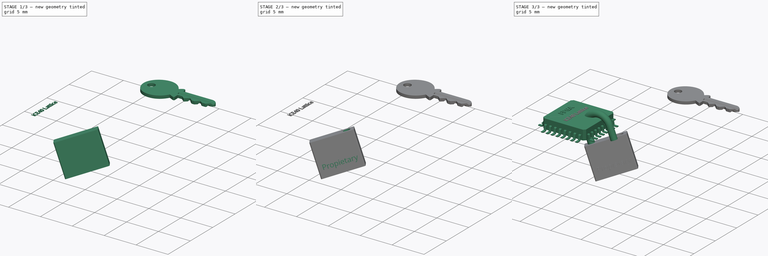
[diagram: build sequence overview — one tinted view per stage of 3, left to right]
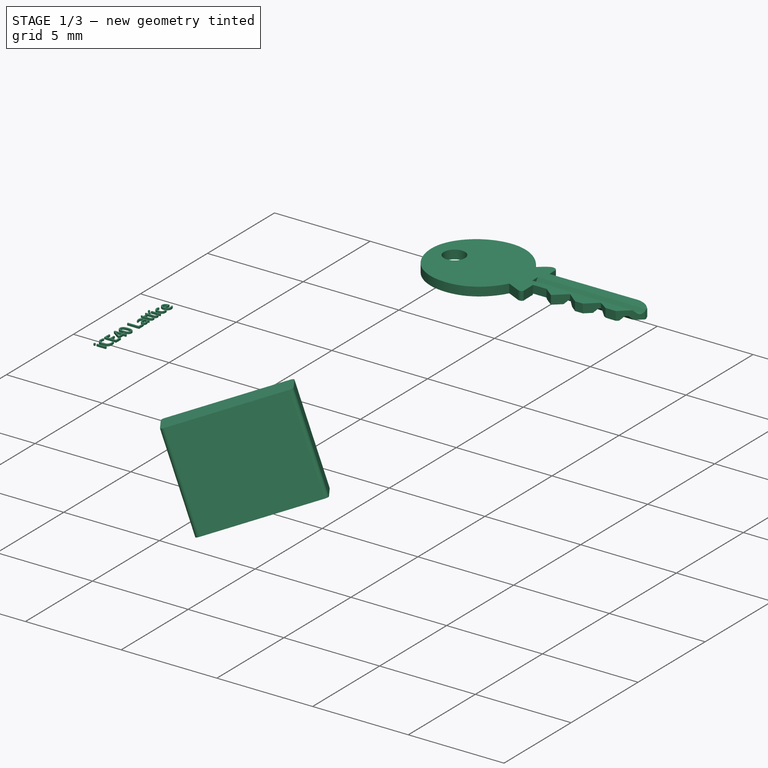
[diagram: stage 1 of 3 — iso view after this stage's code; geometry added in this stage tinted green]
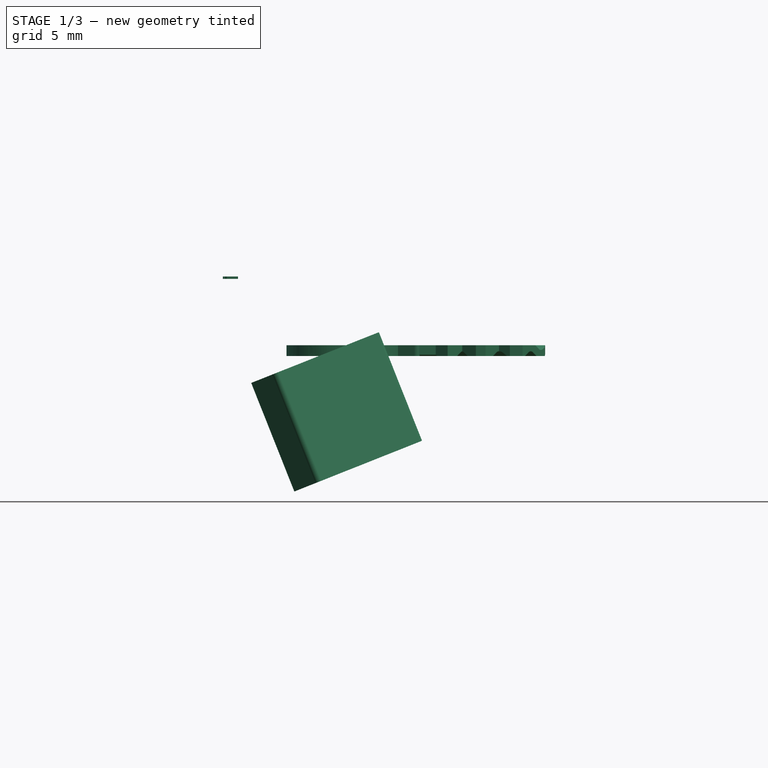
[diagram: stage 1 of 3 — front view after this stage's code; geometry added in this stage tinted green]
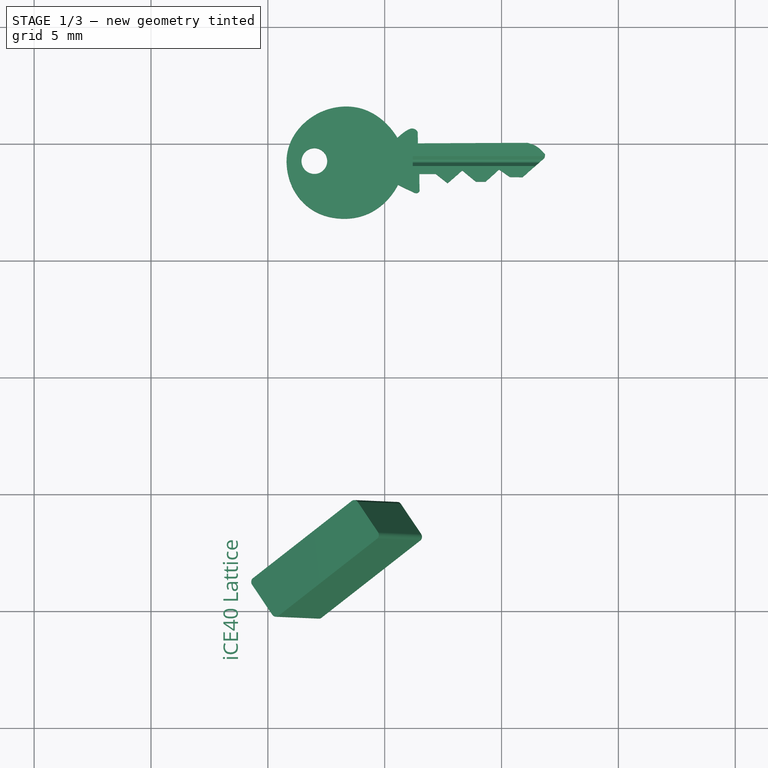
[diagram: stage 1 of 3 — top view after this stage's code; geometry added in this stage tinted green]
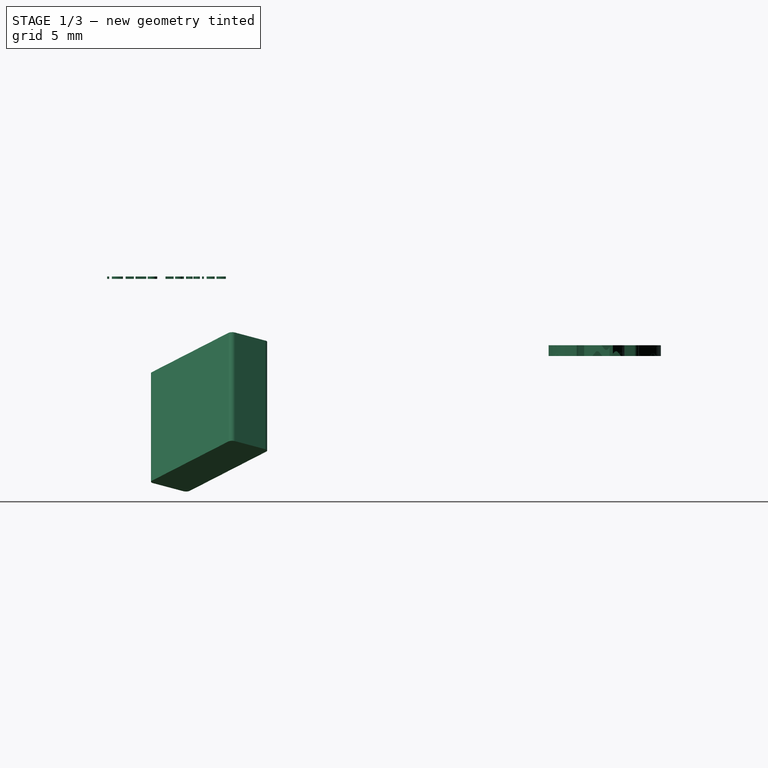
[diagram: stage 1 of 3 — right view after this stage's code; geometry added in this stage tinted green]
FCSTD DOCUMENT  (FreeCAD 0.17R12412 (Git))
Label: fpga-icestorm-1
License: CC-BY 3.0
LicenseURL: http://creativecommons.org/licenses/by/3.0/
objects: Part::Part2DObjectPython×6, Part::Extrusion×4, Sketcher::SketchObject×3, Part::Compound×1, Part::Sweep×1, PartDesign::Pocket×1, Part::Feature×1, Part::FeaturePython×1
note: 19 computed .brp shape members not serialized (recipe doc carries the construction recipe); baked Part::Feature solids carry a one-line shape summary decoded from their .brp

FEATURE [Part::Part2DObjectPython] Rectangle  # Draft 2D object (typed FeaturePython)
  ChamferSize = 0
  Columns = 1
  FilletRadius = 0.2
  Height = -2
  Length = 6
  MakeFace = true
  Placement = pos=(-3,1,0) rot=(0,0,1;0rad)
  Rows = 1
FEATURE [Part::Extrusion] Extrude  label="lock-body"
  Base = -> Rectangle
  Dir = (0,0,-5)
  DirMode = 0
  FaceMakerClass = Part::FaceMakerExtrusion
  LengthFwd = 0
  LengthRev = 0
  Placement = pos=(2.019,-2.83143,-0.0685019) rot=(-0.162414,-0.503555,0.84856;0.726462rad)
  Solid = true
  Symmetric = false
FEATURE [Part::Part2DObjectPython] ShapeString004  # Draft 2D object (typed FeaturePython)
  FontFile = <userpath>/develop/fpgawars.github.io/images/src/Open_Sans/OpenSans-Regular.ttf
  Placement = pos=(-2.17348,-6.63742,3.3) rot=(0,0,1;0rad)
  Size = 0.8
  String = iCE40 Lattice
  Tracking = 0
FEATURE [Part::Extrusion] Extrude003
  Base = -> ShapeString004
  Dir = (0,0,0.1)
  DirMode = 0
  FaceMakerClass = Part::FaceMakerExtrusion
  LengthFwd = 0
  LengthRev = 0
  Placement = pos=(-7.91715,-5.08998,0) rot=(0,0,1;1.5708rad)
  Solid = true
  Symmetric = false
FEATURE [Part::Feature] Cut  label="key-model-1"
  Placement = pos=(17.7074,-0.977876,0) rot=(0,0,1;1.57204rad)
  shape: bbox 24.14 x 55.34 x 2.3 mm, 44 faces (baked)
FEATURE [Part::FeaturePython] Clone  label="Clone of key-model-1"  # Draft clone (typed FeaturePython)
  Objects = -> [Cut]
  Scale = (0.2,0.2,0.2)
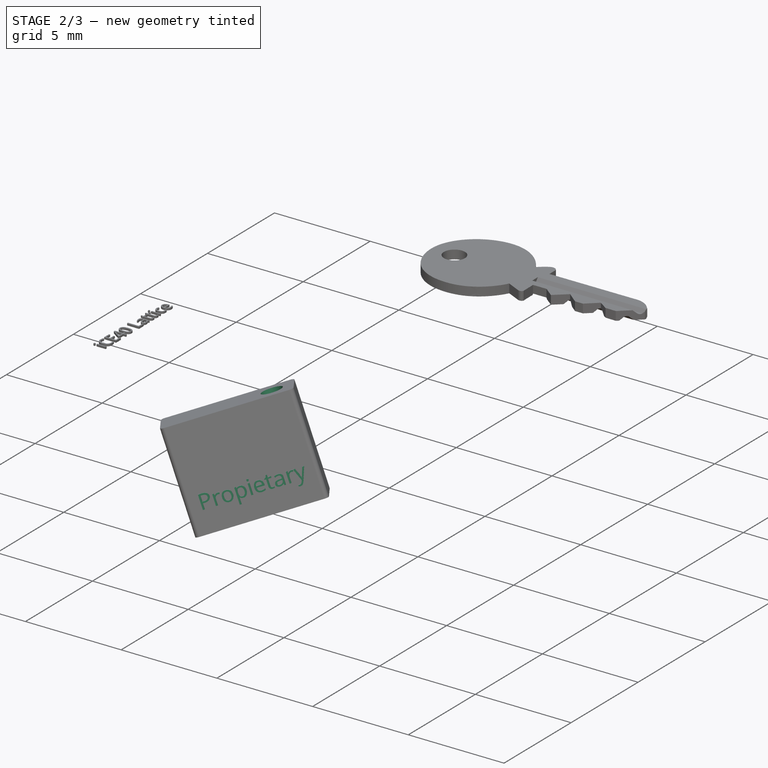
[diagram: stage 2 of 3 — iso view after this stage's code; geometry added in this stage tinted green]
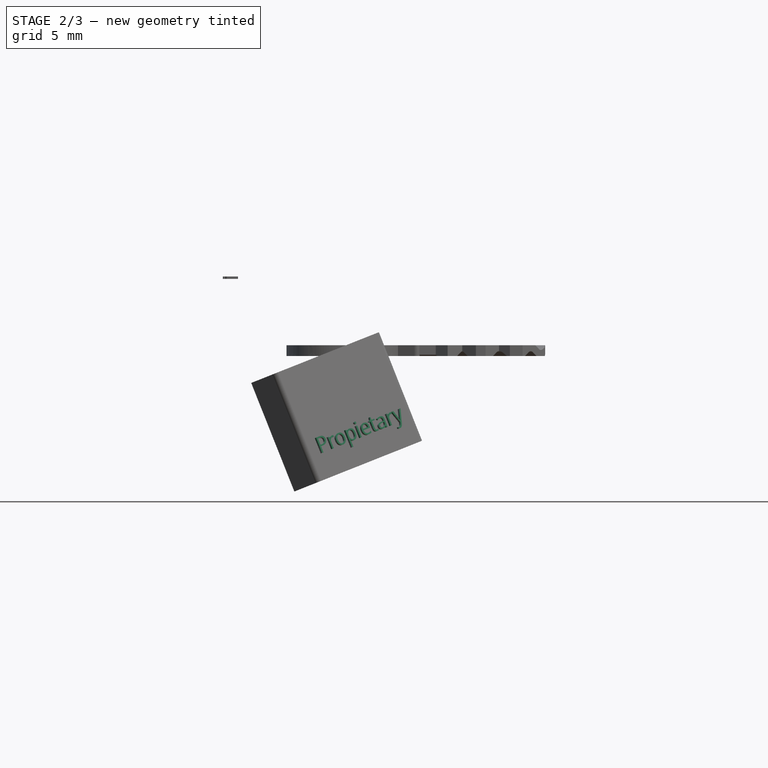
[diagram: stage 2 of 3 — front view after this stage's code; geometry added in this stage tinted green]
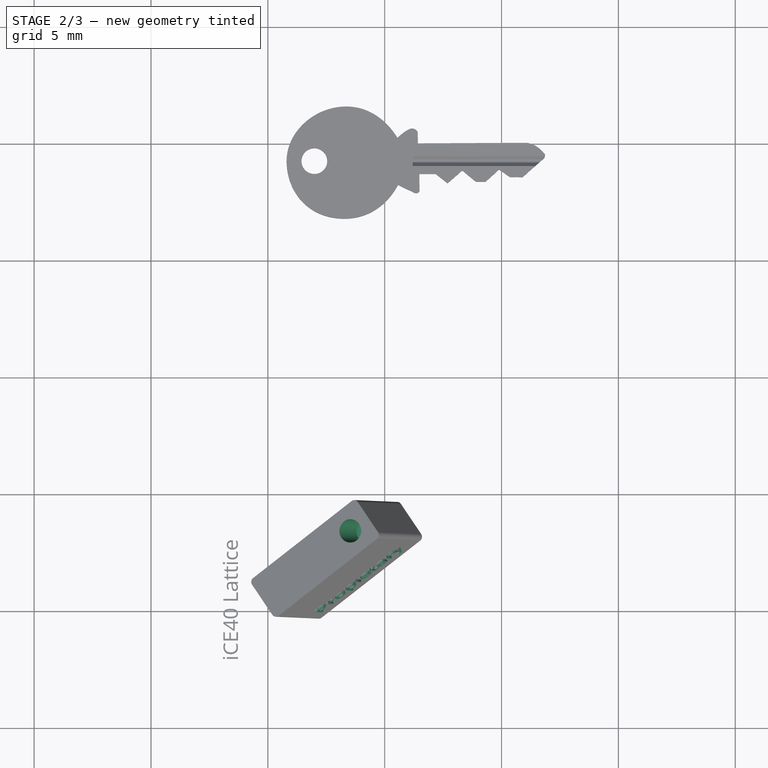
[diagram: stage 2 of 3 — top view after this stage's code; geometry added in this stage tinted green]
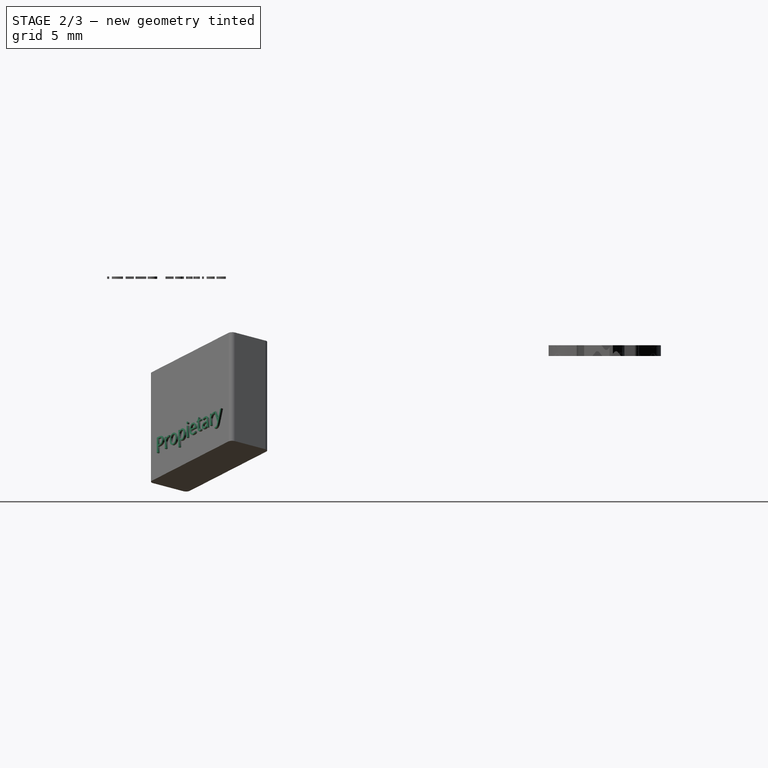
[diagram: stage 2 of 3 — right view after this stage's code; geometry added in this stage tinted green]
FEATURE [Part::Part2DObjectPython] ShapeString001  # Draft 2D object (typed FeaturePython)
  FontFile = <userpath>/develop/myslides/2016-09-24-Mini-maker-faire-madrid/images/src/Open_Sans/OpenSans-Regular.ttf
  Placement = pos=(1.83581,-5,-4.30397) rot=(0.965264,-0.184751,0.184751;1.60614rad)
  Size = 0.9
  String = Propietary
  Tracking = 0
FEATURE [Part::Extrusion] Extrude002  label="privative-text"
  Base = -> ShapeString001
  Dir = (0,-0.1,0)
  DirMode = 0
  FaceMakerClass = Part::FaceMakerExtrusion
  LengthFwd = 0
  LengthRev = 0
  Placement = pos=(-2.33895,-1.05701,-0.966052) rot=(-0.369271,0,0.929322;0.624001rad)
  Solid = true
  Symmetric = false
FEATURE [Sketcher::SketchObject] Sketch
  MapMode = 5
  Placement = pos=(2.019,-2.83143,-0.0685019) rot=(-0.162414,-0.503555,0.84856;0.726462rad)
  Support = -> [Extrude]
FEATURE [Sketcher::SketchObject] Sketch001
  MapMode = 5
  Placement = pos=(2.019,-2.83143,-0.0685019) rot=(-0.162414,-0.503555,0.84856;0.726462rad)
  Support = -> [Extrude]
FEATURE [Sketcher::SketchObject] Sketch002
  MapMode = 5
  Placement = pos=(2.019,-2.83143,-0.0685019) rot=(-0.162414,-0.503555,0.84856;0.726462rad)
  Support = -> [Extrude]
  sketch-geometry (1):
    g0: Circle CenterX=2 CenterY=0 CenterZ=0 NormalX=0 NormalY=0 NormalZ=1 AngleXU=0 Radius=0.5
  constraints (3):
    c: PointOnObject(g0,g-1)
    c: Radius(g0) = 0.5
    c: DistanceX(g-1,g0) = 2
FEATURE [PartDesign::Pocket] Pocket
  Length = 2
  Placement = pos=(2.019,-2.83143,-0.0685019) rot=(-0.162414,-0.503555,0.84856;0.726462rad)
  Profile = -> Sketch002
  Type = 0
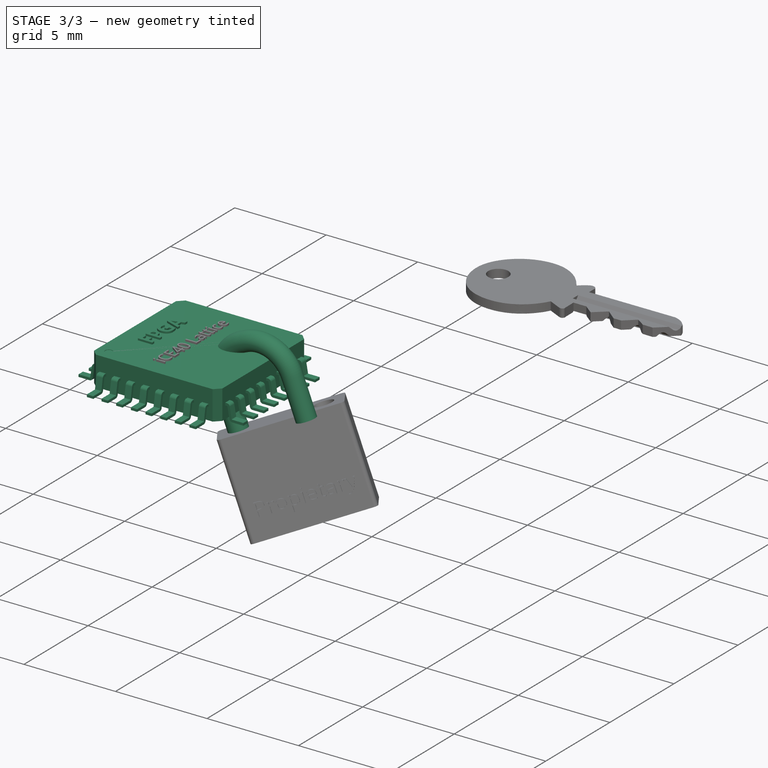
[diagram: stage 3 of 3 — iso view after this stage's code; geometry added in this stage tinted green]
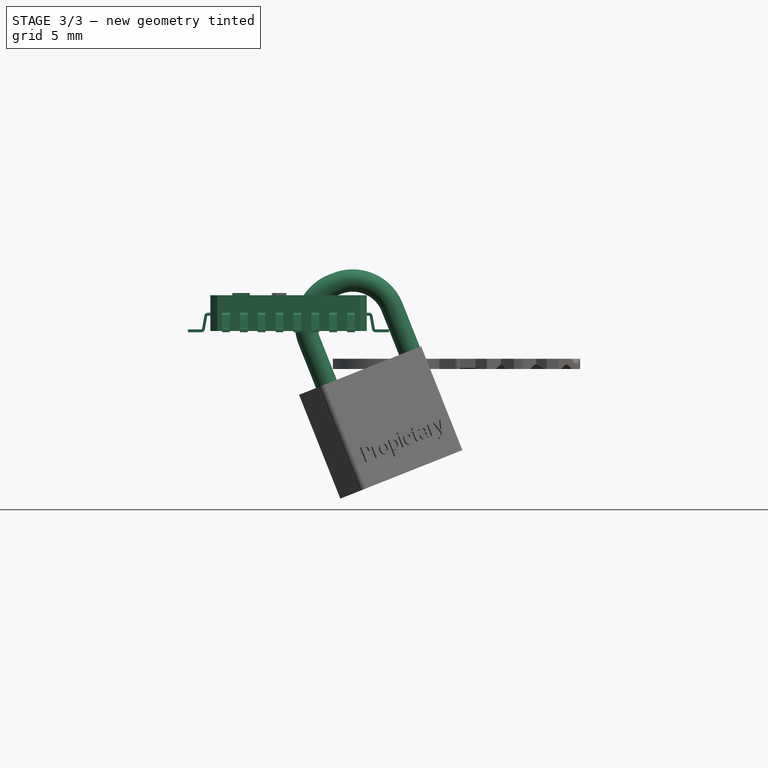
[diagram: stage 3 of 3 — front view after this stage's code; geometry added in this stage tinted green]
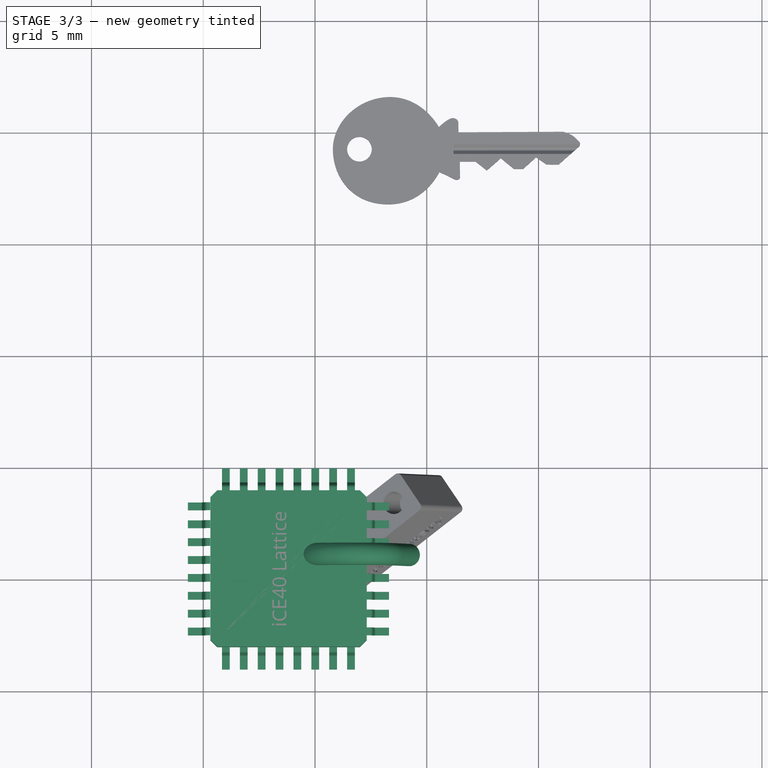
[diagram: stage 3 of 3 — top view after this stage's code; geometry added in this stage tinted green]
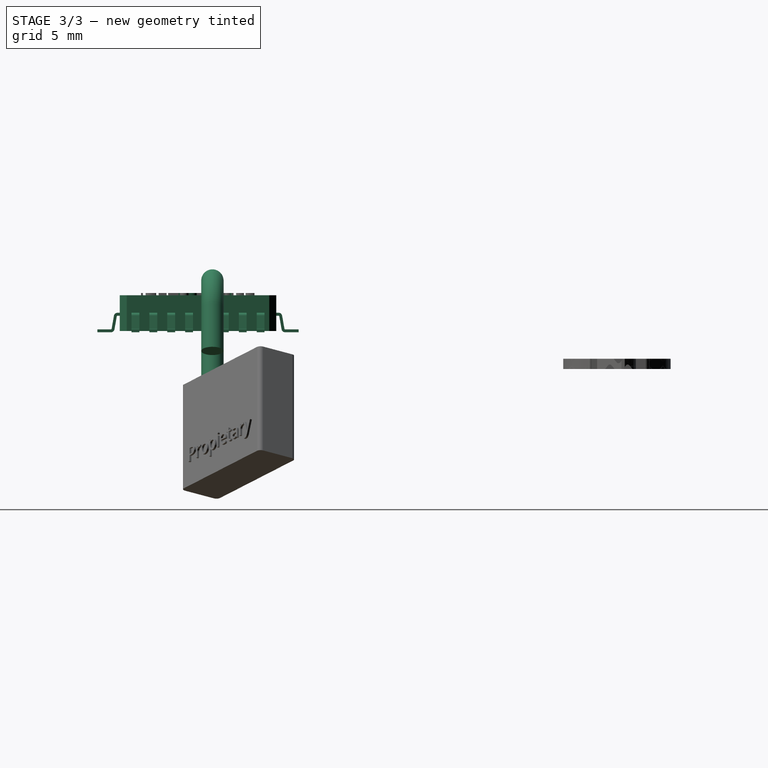
[diagram: stage 3 of 3 — right view after this stage's code; geometry added in this stage tinted green]
FEATURE [Part::Compound] Compound020  label="PQFP-034"
  Placement = pos=(-5.71099,-9.13488,1.7) rot=(0,0,1;0rad)
FEATURE [Part::Part2DObjectPython] DWire  # Draft 2D object (typed FeaturePython)
  ChamferSize = 0
  Closed = false
  End = (2,0,0)
  FilletRadius = 1.9
  Length = 10.369
  MakeFace = true
  Points = (5) [(-2,0,-1.22465e-16),(-2,0,2),(-2,0,4),(2,0,4),(2,0,1.22465e-16)]
  Start = (-2,0,0)
  Subdivisions = 0
FEATURE [Part::Part2DObjectPython] Circle  # Draft 2D object (typed FeaturePython)
  FirstAngle = 0
  LastAngle = 0
  MakeFace = true
  Placement = pos=(-2,0,0) rot=(0,0,1;0rad)
  Radius = 0.5
FEATURE [Part::Sweep] Sweep  label="lock-head"
  Frenet = true
  Placement = pos=(2.36927,-4,0.070678) rot=(0,-1,0;0.378224rad)
  Sections = -> [Circle]
  Solid = true
  Spine = -> DWire
  Transition = 1
FEATURE [Part::Part2DObjectPython] ShapeString  # Draft 2D object (typed FeaturePython)
  FontFile = <userpath>/develop/fpgawars.github.io/images/src/Open_Sans/OpenSans-Bold.ttf
  Placement = pos=(-9.34532,3.35513,3.3) rot=(0,0,1;0rad)
  Size = 1
  String = FPGA
  Tracking = 0
FEATURE [Part::Extrusion] Extrude001  label="FPGA-text"
  Base = -> ShapeString
  Dir = (0,0,0.1)
  DirMode = 0
  FaceMakerClass = Part::FaceMakerExtrusion
  LengthFwd = 0
  LengthRev = 0
  Placement = pos=(0.436393,3.42165,0) rot=(0,0,1;1.5708rad)
  Solid = true
  Symmetric = false
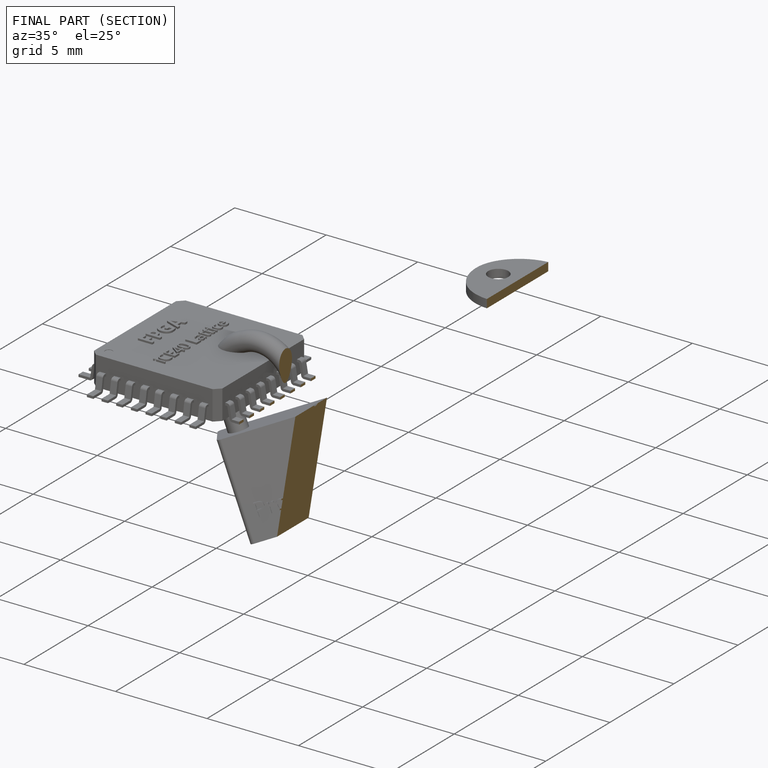
[diagram: finished part — half-section view (interior)]
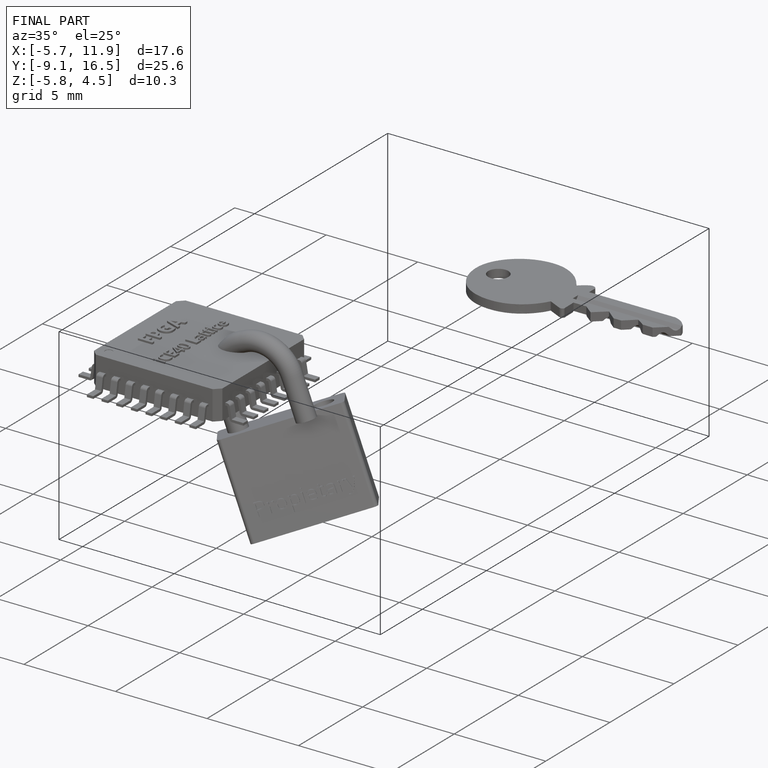
[diagram: finished part — iso view with bounding-box wireframe]
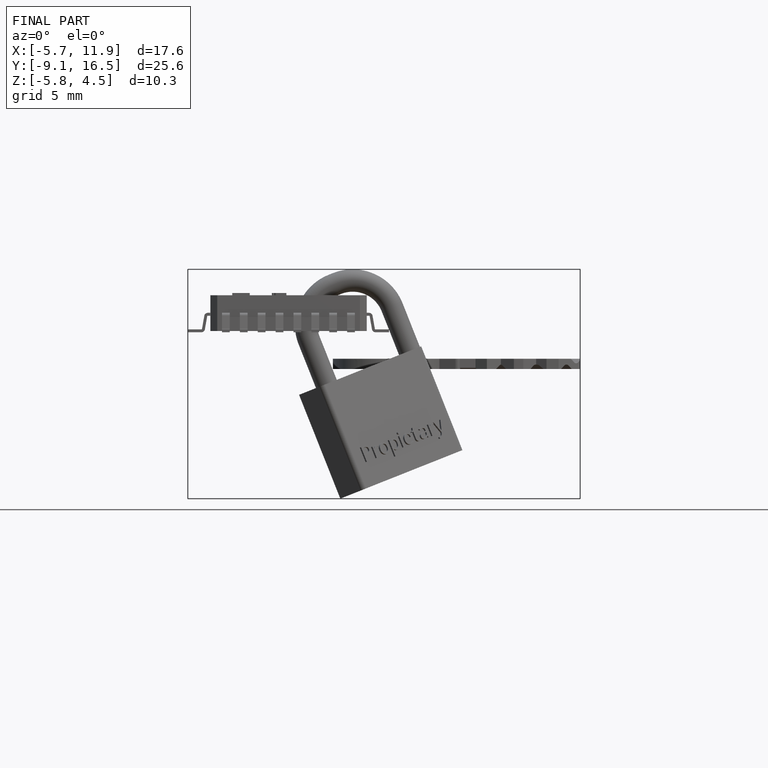
[diagram: finished part — front view with bounding-box wireframe]
